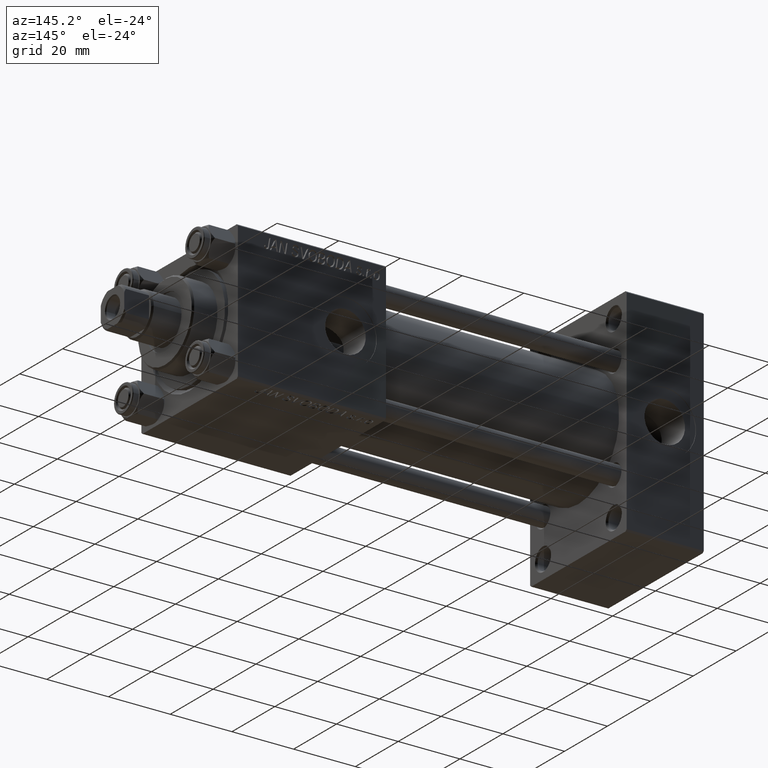
[diagram: clean part render]
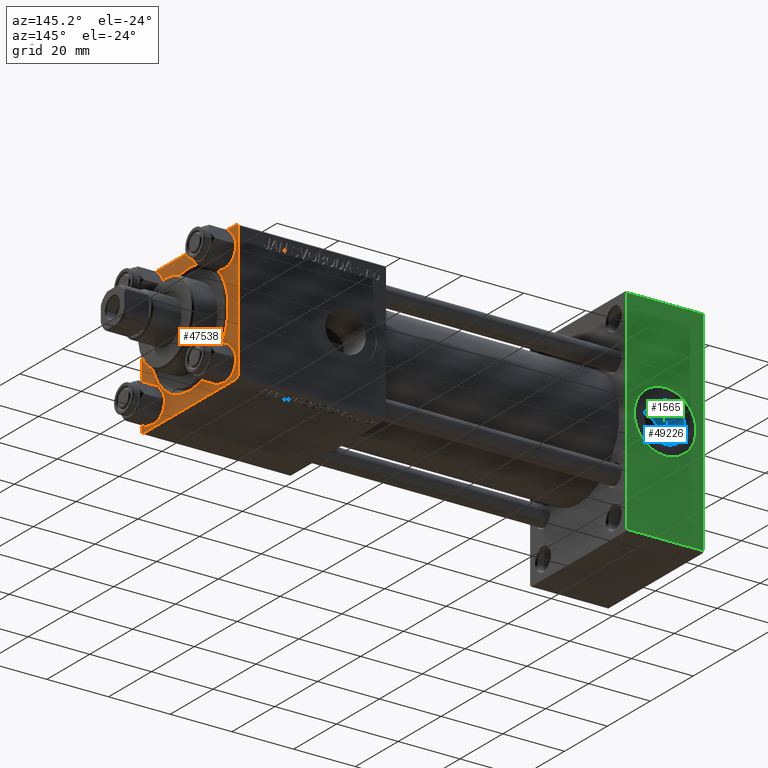
[diagram: same view with three faces highlighted in distinct colors, each labeled with its STEP entity id]
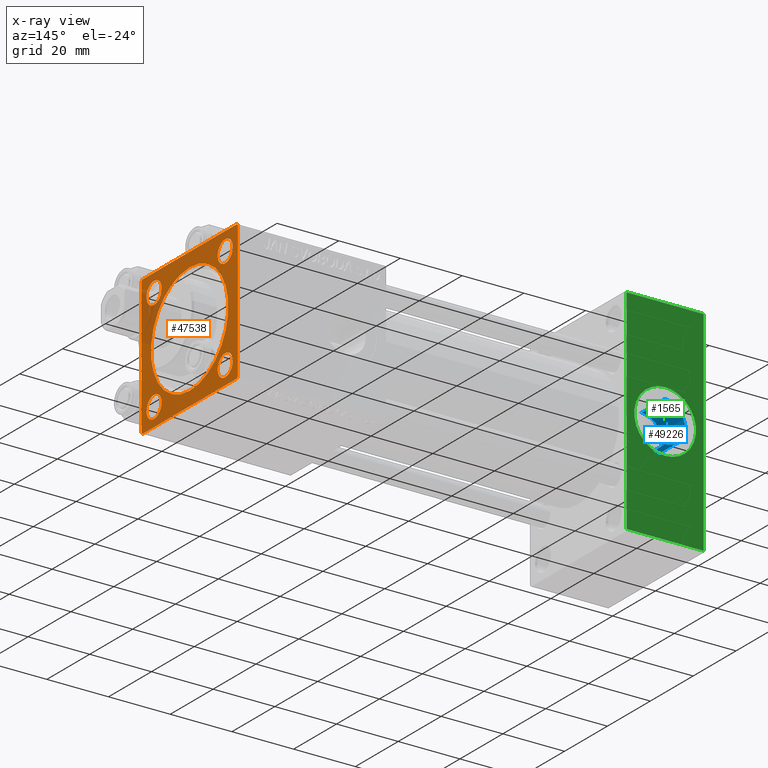
[diagram: x-ray of the same camera — body ghosted, the three highlighted faces saturated]
A machine part, auxiliary view with three faces highlighted in distinct colors.
The next image is the same camera in x-ray (body ghosted, the three faces saturated) — at least one of them is partly hidden behind the body in this view.
Their STEP definitions:

[orange] entity #47538 — the highlighted planar face has unit normal (-1, 0, 0).
#4 = ORIENTED_EDGE ( 'NONE', *, *, #42598, .T. ) ;
#124 = DIRECTION ( 'NONE',  ( 0.000000000000000000, 0.000000000000000000, 1.000000000000000000 ) ) ;
#559 = DIRECTION ( 'NONE',  ( -1.000000000000000000, 0.000000000000000000, -0.000000000000000000 ) ) ;
#1601 = CIRCLE ( 'NONE', #9686, 3.499999999999975131 ) ;
#1730 = EDGE_CURVE ( 'NONE', #35697, #30604, #22023, .T. ) ;
#1784 = ORIENTED_EDGE ( 'NONE', *, *, #38970, .T. ) ;
#1875 = EDGE_CURVE ( 'NONE', #22563, #24231, #37324, .T. ) ;
#2273 = EDGE_LOOP ( 'NONE', ( #34706, #21237 ) ) ;
#2352 = VERTEX_POINT ( 'NONE', #6347 ) ;
#2357 = CARTESIAN_POINT ( 'NONE',  ( 151.0000000000000284, -21.99999999999998224, -22.50000000000000000 ) ) ;
#2634 = AXIS2_PLACEMENT_3D ( 'NONE', #38347, #14876, #23192 ) ;
#2746 = DIRECTION ( 'NONE',  ( 0.000000000000000000, -1.000000000000000000, -7.709882115452476934E-17 ) ) ;
#3094 = VECTOR ( 'NONE', #36747, 1000.000000000000000 ) ;
#3522 = DIRECTION ( 'NONE',  ( -1.000000000000000000, 0.000000000000000000, -0.000000000000000000 ) ) ;
#3763 = ORIENTED_EDGE ( 'NONE', *, *, #12832, .T. ) ;
#3862 = CARTESIAN_POINT ( 'NONE',  ( 151.0000000000000284, 22.50000000000000355, 22.00000000000000355 ) ) ;
#3971 = EDGE_CURVE ( 'NONE', #2352, #39742, #21013, .T. ) ;
#4012 = CARTESIAN_POINT ( 'NONE',  ( 151.0000000000000284, -22.49999999999999645, 22.49999999999999289 ) ) ;
#4416 = PLANE ( 'NONE',  #12927 ) ;
#4630 = DIRECTION ( 'NONE',  ( -1.000000000000000000, 0.000000000000000000, -0.000000000000000000 ) ) ;
#4826 = DIRECTION ( 'NONE',  ( 0.000000000000000000, 0.000000000000000000, 1.000000000000000000 ) ) ;
#5075 = LINE ( 'NONE', #16207, #8860 ) ;
#5156 = FACE_BOUND ( 'NONE', #27877, .T. ) ;
#5677 = CARTESIAN_POINT ( 'NONE',  ( 151.0000000000000284, -16.59999999999999076, 13.10000000000003162 ) ) ;
#5881 = AXIS2_PLACEMENT_3D ( 'NONE', #16344, #43889, #9266 ) ;
#6016 = CARTESIAN_POINT ( 'NONE',  ( 151.0000000000000284, 0.000000000000000000, 0.000000000000000000 ) ) ;
#6083 = VERTEX_POINT ( 'NONE', #29229 ) ;
#6311 = DIRECTION ( 'NONE',  ( 0.000000000000000000, 0.000000000000000000, 1.000000000000000000 ) ) ;
#6347 = CARTESIAN_POINT ( 'NONE',  ( 151.0000000000000284, 22.00000000000000355, -22.49999999999999645 ) ) ;
#6392 = ORIENTED_EDGE ( 'NONE', *, *, #46829, .T. ) ;
#7063 = VERTEX_POINT ( 'NONE', #2357 ) ;
#7070 = DIRECTION ( 'NONE',  ( 0.000000000000000000, 0.000000000000000000, -1.000000000000000000 ) ) ;
#7248 = EDGE_CURVE ( 'NONE', #24231, #22563, #16491, .T. ) ;
#7294 = CARTESIAN_POINT ( 'NONE',  ( 151.0000000000000284, -16.59999999999999076, 20.09999999999998366 ) ) ;
#7676 = CIRCLE ( 'NONE', #49635, 3.499999999999975131 ) ;
#7802 = CARTESIAN_POINT ( 'NONE',  ( 151.0000000000000284, 22.50000000000000355, 22.50000000000000355 ) ) ;
#8038 = EDGE_CURVE ( 'NONE', #33914, #30809, #45870, .T. ) ;
#8463 = CARTESIAN_POINT ( 'NONE',  ( 151.0000000000000284, 0.000000000000000000, 0.000000000000000000 ) ) ;
#8468 = EDGE_LOOP ( 'NONE', ( #42315, #45105 ) ) ;
#8684 = AXIS2_PLACEMENT_3D ( 'NONE', #47537, #559, #4826 ) ;
#8860 = VECTOR ( 'NONE', #47028, 999.9999999999998863 ) ;
#8873 = CARTESIAN_POINT ( 'NONE',  ( 151.0000000000000284, 22.50000000000000355, -21.99999999999999645 ) ) ;
#9056 = DIRECTION ( 'NONE',  ( 0.000000000000000000, 0.000000000000000000, 1.000000000000000000 ) ) ;
#9085 = DIRECTION ( 'NONE',  ( -1.000000000000000000, 0.000000000000000000, -0.000000000000000000 ) ) ;
#9168 = VERTEX_POINT ( 'NONE', #25605 ) ;
#9266 = DIRECTION ( 'NONE',  ( 0.000000000000000000, 0.000000000000000000, 1.000000000000000000 ) ) ;
#9686 = AXIS2_PLACEMENT_3D ( 'NONE', #26458, #22176, #18875 ) ;
#9861 = VERTEX_POINT ( 'NONE', #28384 ) ;
#10616 = EDGE_LOOP ( 'NONE', ( #6392, #32609, #39812, #14962, #24530, #48524, #3763, #1784 ) ) ;
#11002 = CARTESIAN_POINT ( 'NONE',  ( 151.0000000000000284, 22.00000000000000355, 22.50000000000000355 ) ) ;
#12125 = CARTESIAN_POINT ( 'NONE',  ( 151.0000000000000284, -22.49999999999999645, 21.99999999999999289 ) ) ;
#12254 = FACE_BOUND ( 'NONE', #8468, .T. ) ;
#12832 = EDGE_CURVE ( 'NONE', #30809, #45887, #36241, .T. ) ;
#12927 = AXIS2_PLACEMENT_3D ( 'NONE', #8463, #27920, #20078 ) ;
#13770 = EDGE_CURVE ( 'NONE', #33914, #39742, #23726, .T. ) ;
#14072 = VERTEX_POINT ( 'NONE', #19795 ) ;
#14152 = VERTEX_POINT ( 'NONE', #16249 ) ;
#14437 = CIRCLE ( 'NONE', #20883, 17.99999999999998934 ) ;
#14590 = EDGE_CURVE ( 'NONE', #6083, #9861, #14437, .T. ) ;
#14876 = DIRECTION ( 'NONE',  ( -1.000000000000000000, 0.000000000000000000, -0.000000000000000000 ) ) ;
#14962 = ORIENTED_EDGE ( 'NONE', *, *, #3971, .T. ) ;
#15064 = CARTESIAN_POINT ( 'NONE',  ( 151.0000000000000284, -16.59999999999999076, -20.09999999999998366 ) ) ;
#15139 = DIRECTION ( 'NONE',  ( 0.000000000000000000, 0.000000000000000000, -1.000000000000000000 ) ) ;
#15976 = EDGE_CURVE ( 'NONE', #9861, #6083, #29788, .T. ) ;
#16207 = CARTESIAN_POINT ( 'NONE',  ( 151.0000000000000284, -21.99999999999999645, -22.50000000000000000 ) ) ;
#16249 = CARTESIAN_POINT ( 'NONE',  ( 151.0000000000000284, 16.59999999999999787, -13.10000000000002807 ) ) ;
#16344 = CARTESIAN_POINT ( 'NONE',  ( 151.0000000000000284, 16.59999999999999787, 16.60000000000000497 ) ) ;
#16491 = CIRCLE ( 'NONE', #8684, 3.499999999999975131 ) ;
#16610 = EDGE_CURVE ( 'NONE', #31905, #7063, #5075, .T. ) ;
#16816 = CIRCLE ( 'NONE', #24921, 3.499999999999975131 ) ;
#17048 = CARTESIAN_POINT ( 'NONE',  ( 151.0000000000000284, 22.50000000000000355, 22.50000000000000355 ) ) ;
#18315 = VECTOR ( 'NONE', #2746, 1000.000000000000000 ) ;
#18673 = EDGE_CURVE ( 'NONE', #30604, #35697, #21033, .T. ) ;
#18875 = DIRECTION ( 'NONE',  ( 0.000000000000000000, 0.000000000000000000, 1.000000000000000000 ) ) ;
#18941 = DIRECTION ( 'NONE',  ( 0.000000000000000000, 0.000000000000000000, 1.000000000000000000 ) ) ;
#19104 = ORIENTED_EDGE ( 'NONE', *, *, #1875, .T. ) ;
#19468 = CARTESIAN_POINT ( 'NONE',  ( 151.0000000000000284, -22.49999999999999645, 21.99999999999999289 ) ) ;
#19795 = CARTESIAN_POINT ( 'NONE',  ( 151.0000000000000284, 16.59999999999999787, -20.09999999999998010 ) ) ;
#19998 = DIRECTION ( 'NONE',  ( -1.000000000000000000, 0.000000000000000000, -0.000000000000000000 ) ) ;
#20078 = DIRECTION ( 'NONE',  ( -0.000000000000000000, 0.000000000000000000, 1.000000000000000000 ) ) ;
#20504 = DIRECTION ( 'NONE',  ( 0.000000000000000000, 0.000000000000000000, 1.000000000000000000 ) ) ;
#20883 = AXIS2_PLACEMENT_3D ( 'NONE', #44980, #3522, #18941 ) ;
#21013 = LINE ( 'NONE', #8873, #27633 ) ;
#21033 = CIRCLE ( 'NONE', #29106, 3.499999999999975131 ) ;
#21237 = ORIENTED_EDGE ( 'NONE', *, *, #15976, .T. ) ;
#22023 = CIRCLE ( 'NONE', #2634, 3.499999999999975131 ) ;
#22176 = DIRECTION ( 'NONE',  ( -1.000000000000000000, 0.000000000000000000, -0.000000000000000000 ) ) ;
#22563 = VERTEX_POINT ( 'NONE', #25175 ) ;
#23053 = EDGE_LOOP ( 'NONE', ( #4, #24901 ) ) ;
#23192 = DIRECTION ( 'NONE',  ( 0.000000000000000000, 0.000000000000000000, 1.000000000000000000 ) ) ;
#23726 = LINE ( 'NONE', #7802, #24095 ) ;
#23781 = LINE ( 'NONE', #19468, #33628 ) ;
#24095 = VECTOR ( 'NONE', #15139, 1000.000000000000000 ) ;
#24106 = CARTESIAN_POINT ( 'NONE',  ( 151.0000000000000284, -16.59999999999999076, -16.60000000000000853 ) ) ;
#24231 = VERTEX_POINT ( 'NONE', #43343 ) ;
#24530 = ORIENTED_EDGE ( 'NONE', *, *, #13770, .F. ) ;
#24565 = CARTESIAN_POINT ( 'NONE',  ( 151.0000000000000284, -22.49999999999999645, -21.99999999999997868 ) ) ;
#24901 = ORIENTED_EDGE ( 'NONE', *, *, #49963, .T. ) ;
#24921 = AXIS2_PLACEMENT_3D ( 'NONE', #24106, #4630, #124 ) ;
#25027 = VECTOR ( 'NONE', #7070, 1000.000000000000000 ) ;
#25142 = CARTESIAN_POINT ( 'NONE',  ( 151.0000000000000284, 22.00000000000000355, 22.50000000000000355 ) ) ;
#25175 = CARTESIAN_POINT ( 'NONE',  ( 151.0000000000000284, 16.59999999999999787, 13.10000000000002807 ) ) ;
#25531 = CARTESIAN_POINT ( 'NONE',  ( 151.0000000000000284, -16.59999999999999076, -16.60000000000000853 ) ) ;
#25605 = CARTESIAN_POINT ( 'NONE',  ( 151.0000000000000284, -16.59999999999999076, -13.10000000000003162 ) ) ;
#26425 = DIRECTION ( 'NONE',  ( 0.000000000000000000, -0.7071067811865474617, 0.7071067811865474617 ) ) ;
#26458 = CARTESIAN_POINT ( 'NONE',  ( 151.0000000000000284, 16.59999999999999787, -16.60000000000000497 ) ) ;
#27633 = VECTOR ( 'NONE', #47283, 1000.000000000000114 ) ;
#27676 = FACE_BOUND ( 'NONE', #39018, .T. ) ;
#27760 = ORIENTED_EDGE ( 'NONE', *, *, #7248, .T. ) ;
#27877 = EDGE_LOOP ( 'NONE', ( #31540, #47758 ) ) ;
#27920 = DIRECTION ( 'NONE',  ( -1.000000000000000000, 0.000000000000000000, -0.000000000000000000 ) ) ;
#28384 = CARTESIAN_POINT ( 'NONE',  ( 151.0000000000000284, 2.204364238465234244E-15, 17.99999999999998934 ) ) ;
#29106 = AXIS2_PLACEMENT_3D ( 'NONE', #31867, #19998, #20504 ) ;
#29229 = CARTESIAN_POINT ( 'NONE',  ( 151.0000000000000284, 0.000000000000000000, -17.99999999999998934 ) ) ;
#29788 = CIRCLE ( 'NONE', #33829, 17.99999999999998934 ) ;
#30064 = LINE ( 'NONE', #4012, #25027 ) ;
#30604 = VERTEX_POINT ( 'NONE', #7294 ) ;
#30809 = VERTEX_POINT ( 'NONE', #25142 ) ;
#31090 = DIRECTION ( 'NONE',  ( -0.000000000000000000, -0.7071067811865474617, -0.7071067811865474617 ) ) ;
#31540 = ORIENTED_EDGE ( 'NONE', *, *, #1730, .T. ) ;
#31700 = FACE_BOUND ( 'NONE', #23053, .T. ) ;
#31867 = CARTESIAN_POINT ( 'NONE',  ( 151.0000000000000284, -16.59999999999999076, 16.60000000000000853 ) ) ;
#31905 = VERTEX_POINT ( 'NONE', #24565 ) ;
#31943 = FACE_BOUND ( 'NONE', #2273, .T. ) ;
#32609 = ORIENTED_EDGE ( 'NONE', *, *, #16610, .T. ) ;
#32819 = DIRECTION ( 'NONE',  ( 0.000000000000000000, 0.000000000000000000, 1.000000000000000000 ) ) ;
#33142 = EDGE_CURVE ( 'NONE', #14072, #14152, #7676, .T. ) ;
#33628 = VECTOR ( 'NONE', #31090, 1000.000000000000114 ) ;
#33829 = AXIS2_PLACEMENT_3D ( 'NONE', #6016, #44427, #9056 ) ;
#33914 = VERTEX_POINT ( 'NONE', #3862 ) ;
#34429 = EDGE_CURVE ( 'NONE', #2352, #7063, #41403, .T. ) ;
#34706 = ORIENTED_EDGE ( 'NONE', *, *, #14590, .T. ) ;
#34768 = VERTEX_POINT ( 'NONE', #15064 ) ;
#35299 = VECTOR ( 'NONE', #26425, 1000.000000000000114 ) ;
#35697 = VERTEX_POINT ( 'NONE', #5677 ) ;
#36241 = LINE ( 'NONE', #17048, #3094 ) ;
#36747 = DIRECTION ( 'NONE',  ( 0.000000000000000000, -1.000000000000000000, -2.312964634635742957E-16 ) ) ;
#36861 = CARTESIAN_POINT ( 'NONE',  ( 151.0000000000000284, 16.59999999999999787, -16.60000000000000497 ) ) ;
#37324 = CIRCLE ( 'NONE', #5881, 3.499999999999975131 ) ;
#37458 = VERTEX_POINT ( 'NONE', #12125 ) ;
#37602 = CARTESIAN_POINT ( 'NONE',  ( 151.0000000000000284, 22.50000000000000355, -22.49999999999999645 ) ) ;
#38347 = CARTESIAN_POINT ( 'NONE',  ( 151.0000000000000284, -16.59999999999999076, 16.60000000000000853 ) ) ;
#38970 = EDGE_CURVE ( 'NONE', #45887, #37458, #23781, .T. ) ;
#39018 = EDGE_LOOP ( 'NONE', ( #19104, #27760 ) ) ;
#39742 = VERTEX_POINT ( 'NONE', #43101 ) ;
#39812 = ORIENTED_EDGE ( 'NONE', *, *, #34429, .F. ) ;
#40424 = DIRECTION ( 'NONE',  ( -1.000000000000000000, 0.000000000000000000, -0.000000000000000000 ) ) ;
#41277 = CIRCLE ( 'NONE', #46112, 3.499999999999975131 ) ;
#41403 = LINE ( 'NONE', #37602, #18315 ) ;
#42315 = ORIENTED_EDGE ( 'NONE', *, *, #33142, .T. ) ;
#42598 = EDGE_CURVE ( 'NONE', #34768, #9168, #16816, .T. ) ;
#43087 = FACE_OUTER_BOUND ( 'NONE', #10616, .T. ) ;
#43101 = CARTESIAN_POINT ( 'NONE',  ( 151.0000000000000284, 22.50000000000000355, -21.99999999999998224 ) ) ;
#43343 = CARTESIAN_POINT ( 'NONE',  ( 151.0000000000000284, 16.59999999999999787, 20.09999999999998010 ) ) ;
#43889 = DIRECTION ( 'NONE',  ( -1.000000000000000000, 0.000000000000000000, -0.000000000000000000 ) ) ;
#44427 = DIRECTION ( 'NONE',  ( -1.000000000000000000, 0.000000000000000000, -0.000000000000000000 ) ) ;
#44980 = CARTESIAN_POINT ( 'NONE',  ( 151.0000000000000284, 0.000000000000000000, 0.000000000000000000 ) ) ;
#45105 = ORIENTED_EDGE ( 'NONE', *, *, #46106, .T. ) ;
#45870 = LINE ( 'NONE', #11002, #35299 ) ;
#45887 = VERTEX_POINT ( 'NONE', #49329 ) ;
#46106 = EDGE_CURVE ( 'NONE', #14152, #14072, #1601, .T. ) ;
#46112 = AXIS2_PLACEMENT_3D ( 'NONE', #25531, #40424, #6311 ) ;
#46829 = EDGE_CURVE ( 'NONE', #37458, #31905, #30064, .T. ) ;
#47028 = DIRECTION ( 'NONE',  ( 0.000000000000000000, 0.7071067811865425767, -0.7071067811865525687 ) ) ;
#47283 = DIRECTION ( 'NONE',  ( -0.000000000000000000, 0.7071067811865474617, 0.7071067811865474617 ) ) ;
#47537 = CARTESIAN_POINT ( 'NONE',  ( 151.0000000000000284, 16.59999999999999787, 16.60000000000000497 ) ) ;
#47538 = ADVANCED_FACE ( 'NONE', ( #31700, #12254, #27676, #5156, #31943, #43087 ), #4416, .F. ) ;
#47758 = ORIENTED_EDGE ( 'NONE', *, *, #18673, .T. ) ;
#48524 = ORIENTED_EDGE ( 'NONE', *, *, #8038, .T. ) ;
#49329 = CARTESIAN_POINT ( 'NONE',  ( 151.0000000000000284, -21.99999999999998224, 22.49999999999999289 ) ) ;
#49635 = AXIS2_PLACEMENT_3D ( 'NONE', #36861, #9085, #32819 ) ;
#49963 = EDGE_CURVE ( 'NONE', #9168, #34768, #41277, .T. ) ;

[blue] entity #49226 — the highlighted cylindrical surface (edge-blend (fillet) strip) has radius 6.58 mm, axis along (0, 1, 0).
#3458 = VECTOR ( 'NONE', #14520, 1000.000000000000000 ) ;
#3798 = CARTESIAN_POINT ( 'NONE',  ( 12.50000000000000000, 11.44000000000000128, 0.000000000000000000 ) ) ;
#3919 = CIRCLE ( 'NONE', #42665, 6.579999999999998295 ) ;
#6302 = DIRECTION ( 'NONE',  ( -0.000000000000000000, 1.000000000000000000, -0.000000000000000000 ) ) ;
#6662 = CIRCLE ( 'NONE', #48655, 6.579999999999998295 ) ;
#7860 = DIRECTION ( 'NONE',  ( -0.000000000000000000, 1.000000000000000000, -0.000000000000000000 ) ) ;
#9344 = CARTESIAN_POINT ( 'NONE',  ( 12.50000000000000000, 11.44000000000000128, 6.579999999999998295 ) ) ;
#9545 = ORIENTED_EDGE ( 'NONE', *, *, #13463, .T. ) ;
#12369 = CARTESIAN_POINT ( 'NONE',  ( 12.50000000000000000, 22.30000000000000426, 6.579999999999998295 ) ) ;
#13463 = EDGE_CURVE ( 'NONE', #19043, #43193, #43225, .T. ) ;
#13515 = ORIENTED_EDGE ( 'NONE', *, *, #14235, .T. ) ;
#14113 = CARTESIAN_POINT ( 'NONE',  ( 12.50000000000000000, 11.44000000000000128, -6.579999999999998295 ) ) ;
#14235 = EDGE_CURVE ( 'NONE', #43193, #18988, #3919, .T. ) ;
#14520 = DIRECTION ( 'NONE',  ( -0.000000000000000000, 1.000000000000000000, -0.000000000000000000 ) ) ;
#17990 = DIRECTION ( 'NONE',  ( 0.000000000000000000, 0.000000000000000000, 1.000000000000000000 ) ) ;
#18238 = ORIENTED_EDGE ( 'NONE', *, *, #28089, .T. ) ;
#18988 = VERTEX_POINT ( 'NONE', #12369 ) ;
#19043 = VERTEX_POINT ( 'NONE', #14113 ) ;
#23030 = DIRECTION ( 'NONE',  ( -0.000000000000000000, -1.000000000000000000, -0.000000000000000000 ) ) ;
#24326 = EDGE_CURVE ( 'NONE', #48143, #18988, #33202, .T. ) ;
#24527 = CYLINDRICAL_SURFACE ( 'NONE', #27544, 6.579999999999998295 ) ;
#25347 = ORIENTED_EDGE ( 'NONE', *, *, #24326, .F. ) ;
#25590 = DIRECTION ( 'NONE',  ( 0.000000000000000000, 1.000000000000000000, 0.000000000000000000 ) ) ;
#26388 = CARTESIAN_POINT ( 'NONE',  ( 12.50000000000000000, 11.50000000000000355, 6.579999999999998295 ) ) ;
#26519 = VECTOR ( 'NONE', #7860, 1000.000000000000000 ) ;
#27219 = CARTESIAN_POINT ( 'NONE',  ( 12.50000000000000000, 22.30000000000000426, -6.579999999999998295 ) ) ;
#27544 = AXIS2_PLACEMENT_3D ( 'NONE', #40914, #6302, #40418 ) ;
#28089 = EDGE_CURVE ( 'NONE', #48143, #19043, #6662, .T. ) ;
#31724 = EDGE_LOOP ( 'NONE', ( #18238, #9545, #13515, #25347 ) ) ;
#32335 = FACE_OUTER_BOUND ( 'NONE', #31724, .T. ) ;
#33202 = LINE ( 'NONE', #26388, #3458 ) ;
#36939 = CARTESIAN_POINT ( 'NONE',  ( 12.50000000000000000, 22.30000000000000426, 0.000000000000000000 ) ) ;
#38432 = CARTESIAN_POINT ( 'NONE',  ( 12.50000000000000000, 11.50000000000000355, -6.579999999999998295 ) ) ;
#40418 = DIRECTION ( 'NONE',  ( 0.000000000000000000, 0.000000000000000000, 1.000000000000000000 ) ) ;
#40914 = CARTESIAN_POINT ( 'NONE',  ( 12.50000000000000000, 11.50000000000000355, 0.000000000000000000 ) ) ;
#42665 = AXIS2_PLACEMENT_3D ( 'NONE', #36939, #25590, #17990 ) ;
#43193 = VERTEX_POINT ( 'NONE', #27219 ) ;
#43225 = LINE ( 'NONE', #38432, #26519 ) ;
#46251 = DIRECTION ( 'NONE',  ( 0.000000000000000000, 0.000000000000000000, 1.000000000000000000 ) ) ;
#48143 = VERTEX_POINT ( 'NONE', #9344 ) ;
#48655 = AXIS2_PLACEMENT_3D ( 'NONE', #3798, #23030, #46251 ) ;
#49226 = ADVANCED_FACE ( 'NONE', ( #32335 ), #24527, .F. ) ;

[green] entity #1565 — the highlighted planar face has unit normal (0, 1, 0).
#232 = ORIENTED_EDGE ( 'NONE', *, *, #46003, .F. ) ;
#366 = VERTEX_POINT ( 'NONE', #36769 ) ;
#1565 = ADVANCED_FACE ( 'NONE', ( #13867, #25502 ), #40889, .T. ) ;
#2349 = VERTEX_POINT ( 'NONE', #14690 ) ;
#2762 = EDGE_CURVE ( 'NONE', #366, #6947, #4244, .T. ) ;
#2974 = DIRECTION ( 'NONE',  ( -0.000000000000000000, 1.000000000000000000, 0.000000000000000000 ) ) ;
#3424 = DIRECTION ( 'NONE',  ( 0.000000000000000000, 0.000000000000000000, -1.000000000000000000 ) ) ;
#3495 = DIRECTION ( 'NONE',  ( 0.000000000000000000, 1.000000000000000000, 0.000000000000000000 ) ) ;
#4244 = CIRCLE ( 'NONE', #29294, 9.999999999999996447 ) ;
#4275 = VECTOR ( 'NONE', #14328, 1000.000000000000000 ) ;
#4814 = VERTEX_POINT ( 'NONE', #18463 ) ;
#6273 = CARTESIAN_POINT ( 'NONE',  ( 25.00000000000000000, 22.50000000000000355, 35.00000000000000711 ) ) ;
#6305 = ORIENTED_EDGE ( 'NONE', *, *, #15738, .T. ) ;
#6947 = VERTEX_POINT ( 'NONE', #40009 ) ;
#8117 = CARTESIAN_POINT ( 'NONE',  ( 12.50000000000000000, 22.50000000000000355, 0.000000000000000000 ) ) ;
#8568 = VERTEX_POINT ( 'NONE', #35108 ) ;
#12408 = VERTEX_POINT ( 'NONE', #43159 ) ;
#13279 = EDGE_CURVE ( 'NONE', #8568, #2349, #25582, .T. ) ;
#13867 = FACE_BOUND ( 'NONE', #16439, .T. ) ;
#14328 = DIRECTION ( 'NONE',  ( 1.000000000000000000, 0.000000000000000000, 0.000000000000000000 ) ) ;
#14690 = CARTESIAN_POINT ( 'NONE',  ( 0.000000000000000000, 22.50000000000000355, -34.49999999999999289 ) ) ;
#15059 = CARTESIAN_POINT ( 'NONE',  ( 0.000000000000000000, 22.50000000000000355, 35.00000000000000711 ) ) ;
#15738 = EDGE_CURVE ( 'NONE', #12408, #8568, #34353, .T. ) ;
#16439 = EDGE_LOOP ( 'NONE', ( #18689, #232 ) ) ;
#18463 = CARTESIAN_POINT ( 'NONE',  ( 0.000000000000000000, 22.50000000000000355, 34.49999999999999289 ) ) ;
#18689 = ORIENTED_EDGE ( 'NONE', *, *, #2762, .F. ) ;
#21918 = CARTESIAN_POINT ( 'NONE',  ( 25.00000000000000000, 22.50000000000000355, 34.49999999999999289 ) ) ;
#22042 = DIRECTION ( 'NONE',  ( -1.000000000000000000, 0.000000000000000000, 0.000000000000000000 ) ) ;
#22552 = VECTOR ( 'NONE', #22747, 1000.000000000000000 ) ;
#22608 = CIRCLE ( 'NONE', #41974, 9.999999999999996447 ) ;
#22747 = DIRECTION ( 'NONE',  ( 0.000000000000000000, 0.000000000000000000, -1.000000000000000000 ) ) ;
#24279 = DIRECTION ( 'NONE',  ( 0.000000000000000000, 1.000000000000000000, 0.000000000000000000 ) ) ;
#24390 = AXIS2_PLACEMENT_3D ( 'NONE', #6273, #2974, #48737 ) ;
#24654 = ORIENTED_EDGE ( 'NONE', *, *, #24862, .T. ) ;
#24862 = EDGE_CURVE ( 'NONE', #4814, #12408, #34278, .T. ) ;
#25502 = FACE_OUTER_BOUND ( 'NONE', #28931, .T. ) ;
#25582 = LINE ( 'NONE', #45027, #40322 ) ;
#28931 = EDGE_LOOP ( 'NONE', ( #6305, #30555, #44915, #24654 ) ) ;
#29294 = AXIS2_PLACEMENT_3D ( 'NONE', #42155, #3495, #46430 ) ;
#29751 = EDGE_CURVE ( 'NONE', #4814, #2349, #41332, .T. ) ;
#30555 = ORIENTED_EDGE ( 'NONE', *, *, #13279, .T. ) ;
#34278 = LINE ( 'NONE', #21918, #4275 ) ;
#34353 = LINE ( 'NONE', #49774, #22552 ) ;
#35108 = CARTESIAN_POINT ( 'NONE',  ( 25.00000000000000000, 22.50000000000000355, -34.49999999999999289 ) ) ;
#35626 = DIRECTION ( 'NONE',  ( 0.000000000000000000, 0.000000000000000000, 1.000000000000000000 ) ) ;
#36769 = CARTESIAN_POINT ( 'NONE',  ( 12.50000000000000000, 22.50000000000000355, 9.999999999999996447 ) ) ;
#39838 = VECTOR ( 'NONE', #3424, 1000.000000000000000 ) ;
#40009 = CARTESIAN_POINT ( 'NONE',  ( 12.50000000000000178, 22.50000000000000355, -9.999999999999996447 ) ) ;
#40322 = VECTOR ( 'NONE', #22042, 1000.000000000000000 ) ;
#40889 = PLANE ( 'NONE',  #24390 ) ;
#41332 = LINE ( 'NONE', #15059, #39838 ) ;
#41974 = AXIS2_PLACEMENT_3D ( 'NONE', #8117, #24279, #35626 ) ;
#42155 = CARTESIAN_POINT ( 'NONE',  ( 12.50000000000000000, 22.50000000000000355, 0.000000000000000000 ) ) ;
#43159 = CARTESIAN_POINT ( 'NONE',  ( 25.00000000000000000, 22.50000000000000355, 34.49999999999999289 ) ) ;
#44915 = ORIENTED_EDGE ( 'NONE', *, *, #29751, .F. ) ;
#45027 = CARTESIAN_POINT ( 'NONE',  ( 25.00000000000000000, 22.50000000000000355, -34.49999999999999289 ) ) ;
#46003 = EDGE_CURVE ( 'NONE', #6947, #366, #22608, .T. ) ;
#46430 = DIRECTION ( 'NONE',  ( 0.000000000000000000, 0.000000000000000000, 1.000000000000000000 ) ) ;
#48737 = DIRECTION ( 'NONE',  ( 0.000000000000000000, -0.000000000000000000, 1.000000000000000000 ) ) ;
#49774 = CARTESIAN_POINT ( 'NONE',  ( 25.00000000000000000, 22.50000000000000355, 35.00000000000000711 ) ) ;